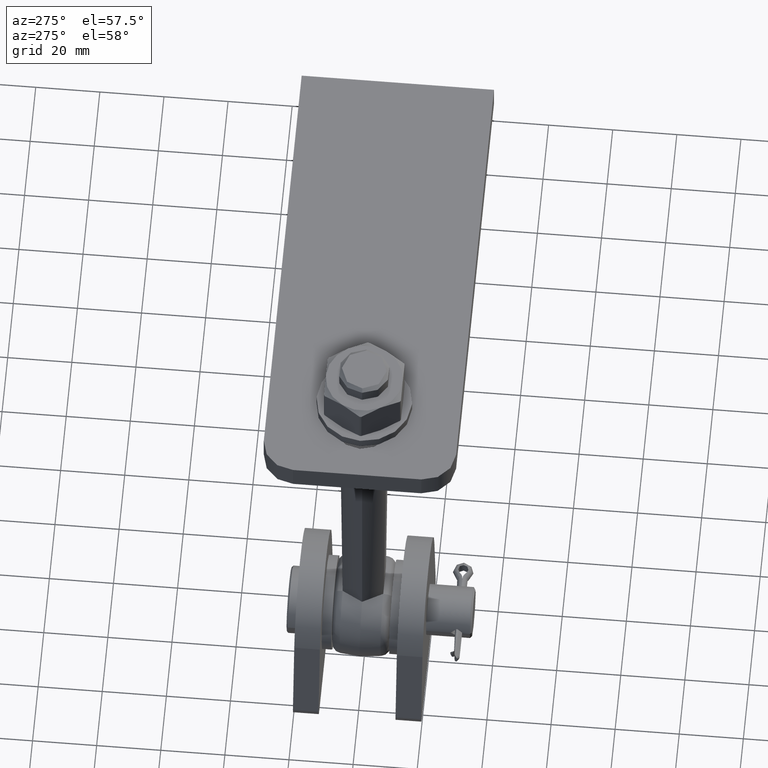
[diagram: clean part render]
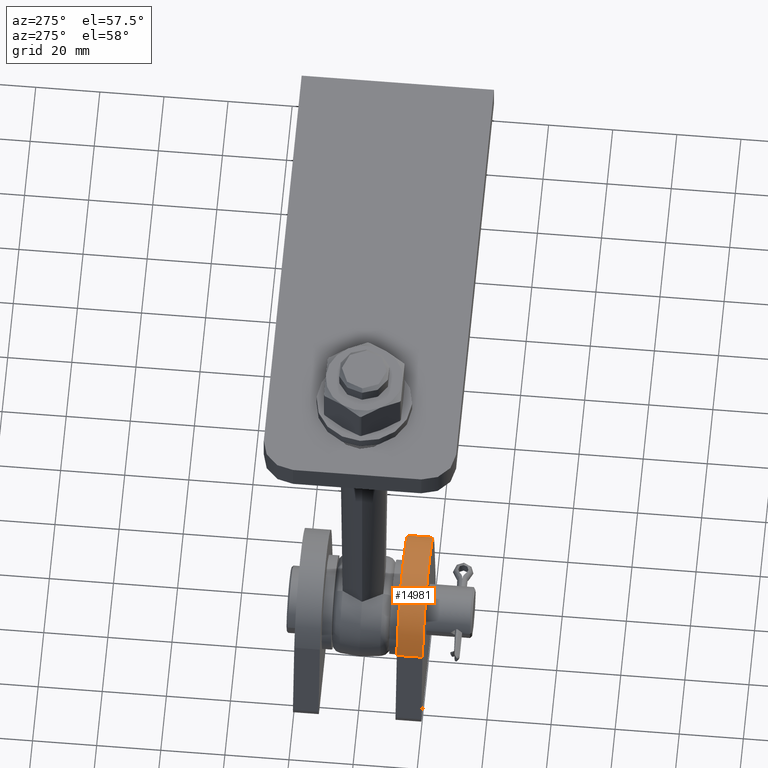
[diagram: same view with one face highlighted and labeled with its STEP entity id]
A machine part, auxiliary view. The second image highlights one B-rep face of the part: STEP entity #14981.
In plain terms, the highlighted cylindrical surface (partial cylindrical patch) has radius 21.5213 mm, axis along (-0, -1, -0).
Its self-contained STEP definition (entity closure, byte-faithful):
#176 = DIRECTION ( 'NONE',  ( 0.000000000000000000, 1.000000000000000000, 0.000000000000000000 ) ) ;
#1084 = DIRECTION ( 'NONE',  ( 0.000000000000000000, 1.000000000000000000, 0.000000000000000000 ) ) ;
#1548 = EDGE_LOOP ( 'NONE', ( #16630, #2126, #15764, #13108 ) ) ;
#1613 = CARTESIAN_POINT ( 'NONE',  ( 1.292469707114105742E-23, 4.000000000000003553, 28.47873303451547145 ) ) ;
#1862 = DIRECTION ( 'NONE',  ( 0.000000000000000000, 0.000000000000000000, -1.000000000000000000 ) ) ;
#2091 = CARTESIAN_POINT ( 'NONE',  ( 1.292469707114105742E-23, 4.000000000000003553, 28.47873303451547145 ) ) ;
#2126 = ORIENTED_EDGE ( 'NONE', *, *, #13484, .F. ) ;
#3080 = AXIS2_PLACEMENT_3D ( 'NONE', #10478, #1084, #5182 ) ;
#3495 = CARTESIAN_POINT ( 'NONE',  ( 21.23124138521916748, 4.000000000000003553, 32.00000000000000000 ) ) ;
#3819 = DIRECTION ( 'NONE',  ( -0.000000000000000000, -1.000000000000000000, -0.000000000000000000 ) ) ;
#4135 = VERTEX_POINT ( 'NONE', #16003 ) ;
#4287 = DIRECTION ( 'NONE',  ( 0.000000000000000000, 0.000000000000000000, 1.000000000000000000 ) ) ;
#4291 = VERTEX_POINT ( 'NONE', #4755 ) ;
#4755 = CARTESIAN_POINT ( 'NONE',  ( -21.23124138521916748, 4.000000000000003553, 32.00000000000000000 ) ) ;
#5182 = DIRECTION ( 'NONE',  ( 0.000000000000000000, 0.000000000000000000, 1.000000000000000000 ) ) ;
#5408 = CIRCLE ( 'NONE', #14237, 21.52126696548452855 ) ;
#5793 = CARTESIAN_POINT ( 'NONE',  ( 21.23124138521916748, 4.000000000000003553, 32.00000000000000000 ) ) ;
#6471 = FACE_OUTER_BOUND ( 'NONE', #1548, .T. ) ;
#7000 = VERTEX_POINT ( 'NONE', #11909 ) ;
#7103 = LINE ( 'NONE', #3495, #9395 ) ;
#7920 = CYLINDRICAL_SURFACE ( 'NONE', #13447, 21.52126696548452855 ) ;
#8427 = VECTOR ( 'NONE', #3819, 1000.000000000000000 ) ;
#9127 = CARTESIAN_POINT ( 'NONE',  ( -21.23124138521916748, 4.000000000000003553, 32.00000000000000000 ) ) ;
#9395 = VECTOR ( 'NONE', #14067, 1000.000000000000000 ) ;
#9456 = CIRCLE ( 'NONE', #3080, 21.52126696548452855 ) ;
#9477 = LINE ( 'NONE', #9127, #8427 ) ;
#10478 = CARTESIAN_POINT ( 'NONE',  ( 1.292469707114105742E-23, -4.000000000000003553, 28.47873303451547145 ) ) ;
#10917 = VERTEX_POINT ( 'NONE', #5793 ) ;
#11408 = EDGE_CURVE ( 'NONE', #4291, #7000, #9477, .T. ) ;
#11909 = CARTESIAN_POINT ( 'NONE',  ( -21.23124138521916748, -4.000000000000003553, 32.00000000000000000 ) ) ;
#13108 = ORIENTED_EDGE ( 'NONE', *, *, #11408, .T. ) ;
#13447 = AXIS2_PLACEMENT_3D ( 'NONE', #2091, #15223, #1862 ) ;
#13484 = EDGE_CURVE ( 'NONE', #10917, #4135, #7103, .T. ) ;
#13570 = EDGE_CURVE ( 'NONE', #7000, #4135, #9456, .T. ) ;
#14067 = DIRECTION ( 'NONE',  ( -0.000000000000000000, -1.000000000000000000, -0.000000000000000000 ) ) ;
#14237 = AXIS2_PLACEMENT_3D ( 'NONE', #1613, #176, #4287 ) ;
#14981 = ADVANCED_FACE ( 'NONE', ( #6471 ), #7920, .T. ) ;
#15223 = DIRECTION ( 'NONE',  ( -0.000000000000000000, -1.000000000000000000, -0.000000000000000000 ) ) ;
#15764 = ORIENTED_EDGE ( 'NONE', *, *, #16477, .F. ) ;
#16003 = CARTESIAN_POINT ( 'NONE',  ( 21.23124138521916748, -4.000000000000003553, 32.00000000000000000 ) ) ;
#16477 = EDGE_CURVE ( 'NONE', #4291, #10917, #5408, .T. ) ;
#16630 = ORIENTED_EDGE ( 'NONE', *, *, #13570, .T. ) ;